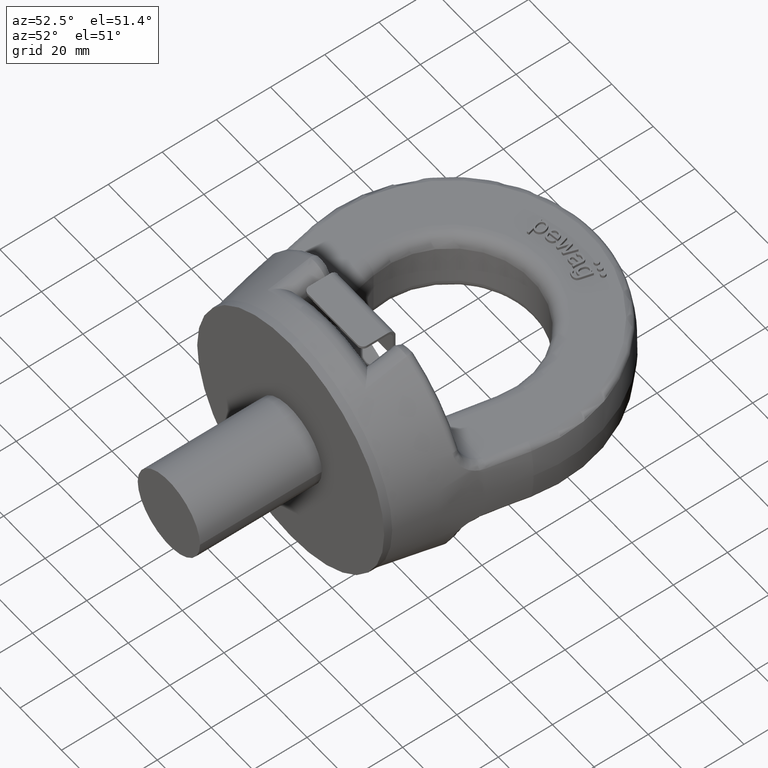
[diagram: clean part render]
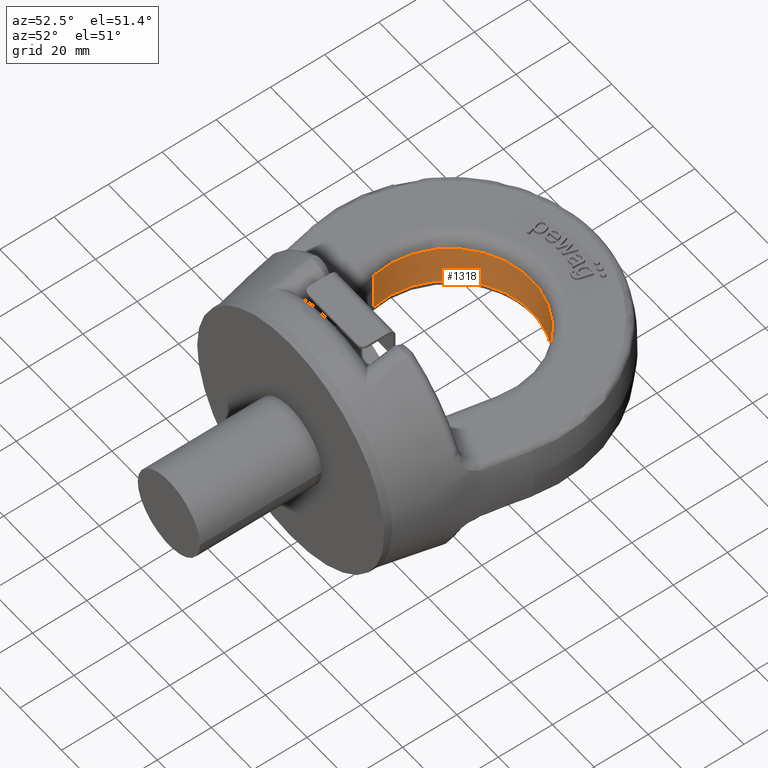
[diagram: same view with one face highlighted and labeled with its STEP entity id]
A machine part, auxiliary view. The second image highlights one B-rep face of the part: STEP entity #1318.
In plain terms, the highlighted cylindrical surface (partial cylindrical patch) has radius 30 mm, axis along (0, 0, -1).
Its self-contained STEP definition (entity closure, byte-faithful):
#1056=CYLINDRICAL_SURFACE('',#5149,30.);
#1097=FACE_OUTER_BOUND('',#1831,.T.);
#1318=ADVANCED_FACE('',(#1097),#1056,.F.);
#1687=CIRCLE('',#5147,30.);
#1688=CIRCLE('',#5148,30.);
#1831=EDGE_LOOP('',(#2835,#2836,#2837,#2838));
#2149=LINE('',#6869,#2429);
#2150=LINE('',#6874,#2430);
#2429=VECTOR('',#5507,1.);
#2430=VECTOR('',#5510,1.);
#2835=ORIENTED_EDGE('',*,*,#4395,.T.);
#2836=ORIENTED_EDGE('',*,*,#4396,.T.);
#2837=ORIENTED_EDGE('',*,*,#4397,.F.);
#2838=ORIENTED_EDGE('',*,*,#4398,.T.);
#4003=VERTEX_POINT('',#6870);
#4004=VERTEX_POINT('',#6871);
#4005=VERTEX_POINT('',#6873);
#4006=VERTEX_POINT('',#6875);
#4395=EDGE_CURVE('',#4003,#4004,#2149,.T.);
#4396=EDGE_CURVE('',#4004,#4005,#1687,.T.);
#4397=EDGE_CURVE('',#4006,#4005,#2150,.T.);
#4398=EDGE_CURVE('',#4006,#4003,#1688,.T.);
#5147=AXIS2_PLACEMENT_3D('',#6872,#5508,#5509);
#5148=AXIS2_PLACEMENT_3D('',#6876,#5511,#5512);
#5149=AXIS2_PLACEMENT_3D('',#6877,#5513,#5514);
#5507=DIRECTION('',(0.,0.,1.));
#5508=DIRECTION('',(0.,1.26490253456642E-16,1.));
#5509=DIRECTION('',(0.,1.,-1.15648231731787E-16));
#5510=DIRECTION('',(0.,0.,1.));
#5511=DIRECTION('',(2.34291072916505E-15,1.26490253456642E-16,-1.));
#5512=DIRECTION('',(-3.08148791101958E-31,1.,1.15648231731787E-16));
#5513=DIRECTION('',(0.,0.,-1.));
#5514=DIRECTION('',(-1.,0.,0.));
#6869=CARTESIAN_POINT('',(29.4311874550897,53.1857756335542,60.5));
#6870=CARTESIAN_POINT('',(29.4311874550897,53.1857756335542,-7.49999999999994));
#6871=CARTESIAN_POINT('',(29.4311874550897,53.1857756335542,7.50000000000001));
#6872=CARTESIAN_POINT('',(0.,59.,7.50000000000001));
#6873=CARTESIAN_POINT('',(-29.4311874550897,53.1857756335542,7.50000000000001));
#6874=CARTESIAN_POINT('',(-29.4311874550897,53.1857756335542,60.5));
#6875=CARTESIAN_POINT('',(-29.4311874550897,53.1857756335542,-7.50000000000008));
#6876=CARTESIAN_POINT('',(1.75718304687379E-14,59.,-7.50000000000001));
#6877=CARTESIAN_POINT('',(0.,59.,60.5));